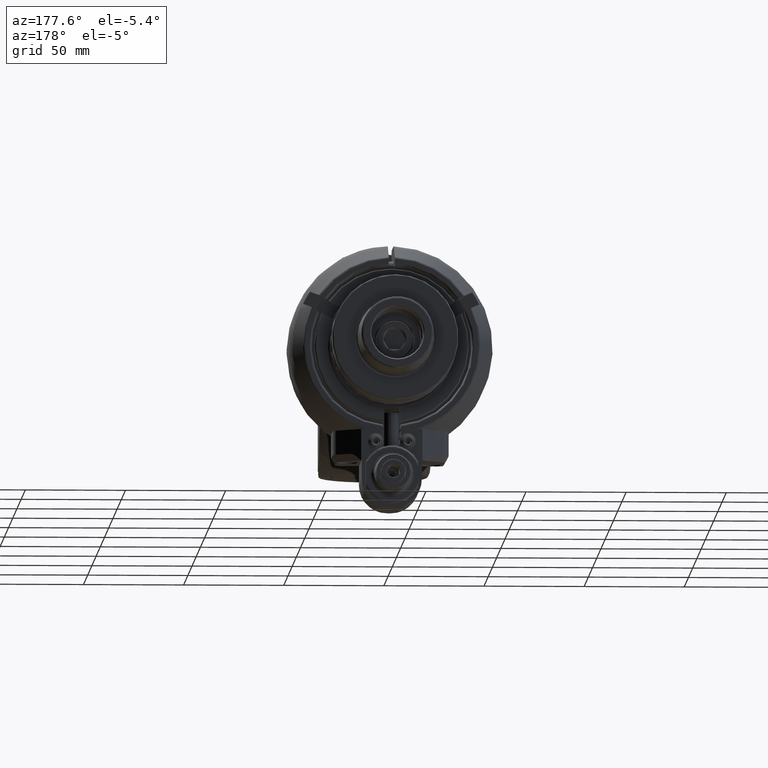
[diagram: clean part render]
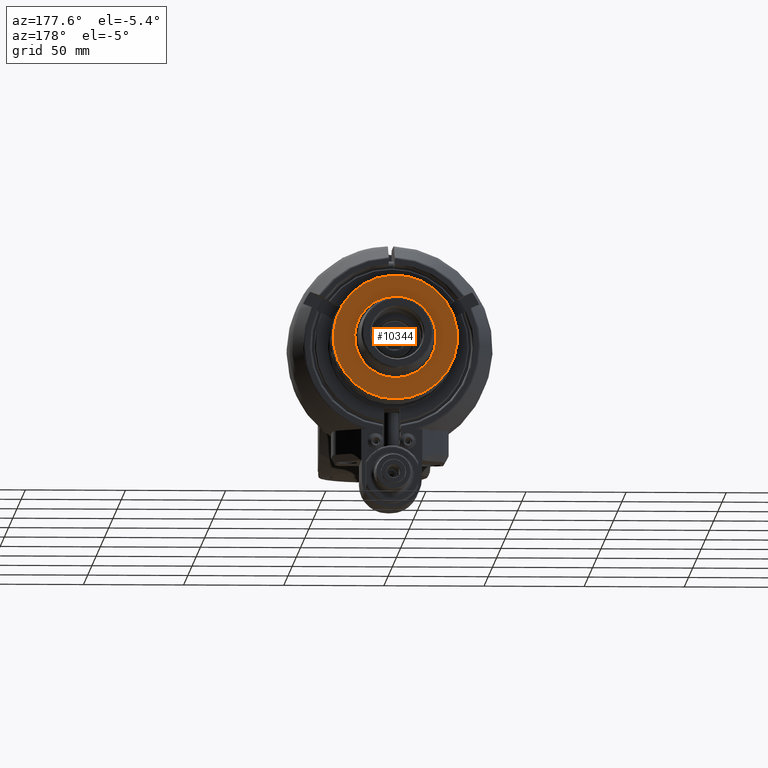
[diagram: same view with one face highlighted and labeled with its STEP entity id]
A machine part, auxiliary view. The second image highlights one B-rep face of the part: STEP entity #10344.
In plain terms, the highlighted planar face has unit normal (0, 1, 0).
Its self-contained STEP definition (entity closure, byte-faithful):
#1918=FACE_BOUND('',#3246,.T.);
#2126=PLANE('',#11450);
#2591=FACE_OUTER_BOUND('',#3245,.T.);
#3245=EDGE_LOOP('',(#8785,#8786));
#3246=EDGE_LOOP('',(#8787));
#3939=CIRCLE('',#11449,20.35479740133);
#3940=CIRCLE('',#11451,31.);
#3941=CIRCLE('',#11452,31.);
#4845=VERTEX_POINT('',#19852);
#4846=VERTEX_POINT('',#19856);
#4847=VERTEX_POINT('',#19857);
#6227=EDGE_CURVE('',#4845,#4845,#3939,.T.);
#6228=EDGE_CURVE('',#4846,#4847,#3940,.T.);
#6229=EDGE_CURVE('',#4847,#4846,#3941,.T.);
#8785=ORIENTED_EDGE('',*,*,#6228,.T.);
#8786=ORIENTED_EDGE('',*,*,#6229,.T.);
#8787=ORIENTED_EDGE('',*,*,#6227,.T.);
#10344=ADVANCED_FACE('',(#2591,#1918),#2126,.T.);
#11449=AXIS2_PLACEMENT_3D('',#19854,#14006,#14007);
#11450=AXIS2_PLACEMENT_3D('',#19855,#14008,#14009);
#11451=AXIS2_PLACEMENT_3D('',#19858,#14010,#14011);
#11452=AXIS2_PLACEMENT_3D('',#19859,#14012,#14013);
#14006=DIRECTION('center_axis',(0.,-1.,0.));
#14007=DIRECTION('ref_axis',(-0.707106781186547,0.,-0.707106781186547));
#14008=DIRECTION('center_axis',(0.,1.,0.));
#14009=DIRECTION('ref_axis',(0.,0.,-1.));
#14010=DIRECTION('center_axis',(0.,1.,0.));
#14011=DIRECTION('ref_axis',(0.707106781186547,0.,0.707106781186547));
#14012=DIRECTION('center_axis',(0.,1.,0.));
#14013=DIRECTION('ref_axis',(0.707106781186547,0.,0.707106781186547));
#19852=CARTESIAN_POINT('',(-14.39301527216,83.,-14.39301527216));
#19854=CARTESIAN_POINT('Origin',(0.,83.,0.));
#19855=CARTESIAN_POINT('Origin',(0.,83.,25.1945955));
#19856=CARTESIAN_POINT('',(21.92031021678,83.,21.92031021678));
#19857=CARTESIAN_POINT('',(3.79640507735679E-15,83.,-31.));
#19858=CARTESIAN_POINT('Origin',(0.,83.,0.));
#19859=CARTESIAN_POINT('Origin',(0.,83.,0.));